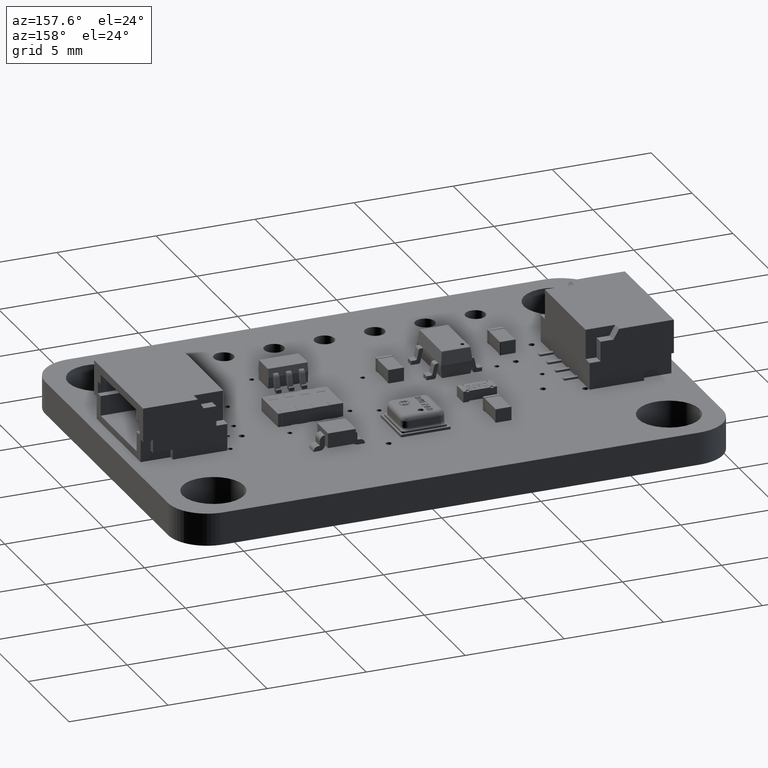
[diagram: clean part render]
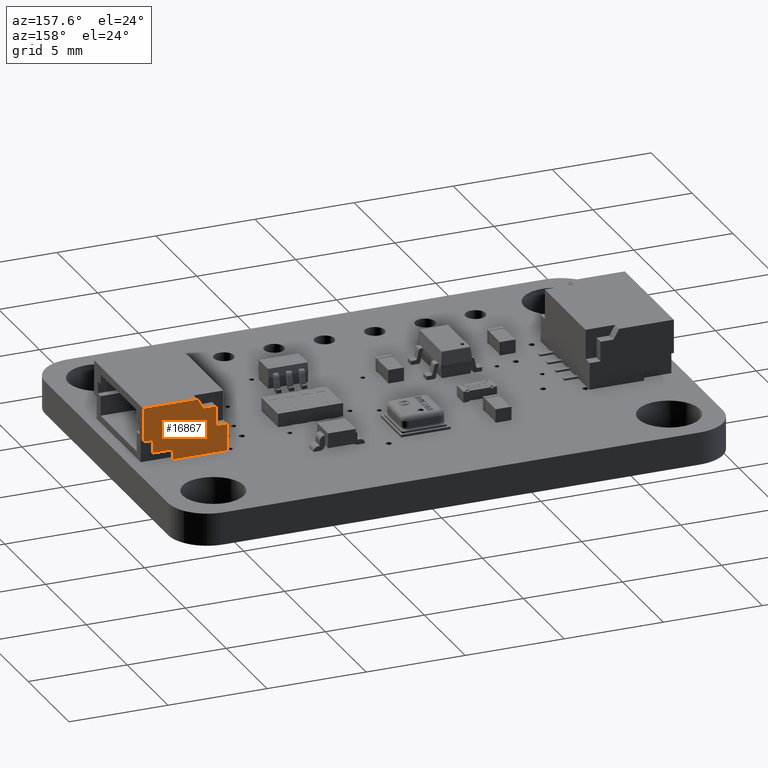
[diagram: same view with one face highlighted and labeled with its STEP entity id]
A machine part, auxiliary view. The second image highlights one B-rep face of the part: STEP entity #16867.
In plain terms, the highlighted planar face has unit normal (0, -1, -0).
Its self-contained STEP definition (entity closure, byte-faithful):
#16067 = VERTEX_POINT('',#16068);
#16068 = CARTESIAN_POINT('',(3.,1.555,3.895));
#16074 = EDGE_CURVE('',#16075,#16067,#16077,.T.);
#16075 = VERTEX_POINT('',#16076);
#16076 = CARTESIAN_POINT('',(3.,3.255,3.895));
#16077 = LINE('',#16078,#16079);
#16078 = CARTESIAN_POINT('',(3.,3.255,3.895));
#16079 = VECTOR('',#16080,1.);
#16080 = DIRECTION('',(-2.438091212181E-029,-1.,-3.491483361109E-015));
#16518 = VERTEX_POINT('',#16519);
#16519 = CARTESIAN_POINT('',(3.,0.355,-0.355));
#16525 = EDGE_CURVE('',#16526,#16518,#16528,.T.);
#16526 = VERTEX_POINT('',#16527);
#16527 = CARTESIAN_POINT('',(3.,0.355,2.395));
#16528 = LINE('',#16529,#16530);
#16529 = CARTESIAN_POINT('',(3.,0.355,-0.355));
#16530 = VECTOR('',#16531,1.);
#16531 = DIRECTION('',(-7.18705183704E-015,3.491483361109E-015,-1.));
#16808 = EDGE_CURVE('',#16075,#16809,#16811,.T.);
#16809 = VERTEX_POINT('',#16810);
#16810 = CARTESIAN_POINT('',(3.,3.255,1.133675134595));
#16811 = LINE('',#16812,#16813);
#16812 = CARTESIAN_POINT('',(3.,3.255,-0.355));
#16813 = VECTOR('',#16814,1.);
#16814 = DIRECTION('',(-7.18705183704E-015,3.491483361109E-015,-1.));
#16867 = ADVANCED_FACE('',(#16868),#16941,.F.);
#16868 = FACE_BOUND('',#16869,.T.);
#16869 = EDGE_LOOP('',(#16870,#16880,#16886,#16887,#16888,#16896,#16904,
    #16912,#16918,#16919,#16927,#16935));
#16870 = ORIENTED_EDGE('',*,*,#16871,.F.);
#16871 = EDGE_CURVE('',#16872,#16874,#16876,.T.);
#16872 = VERTEX_POINT('',#16873);
#16873 = CARTESIAN_POINT('',(3.,2.755,0.845));
#16874 = VERTEX_POINT('',#16875);
#16875 = CARTESIAN_POINT('',(3.,2.755,0.195));
#16876 = LINE('',#16877,#16878);
#16877 = CARTESIAN_POINT('',(3.,2.755,0.195));
#16878 = VECTOR('',#16879,1.);
#16879 = DIRECTION('',(-6.982966722219E-015,3.491483361109E-015,-1.));
#16880 = ORIENTED_EDGE('',*,*,#16881,.F.);
#16881 = EDGE_CURVE('',#16809,#16872,#16882,.T.);
#16882 = LINE('',#16883,#16884);
#16883 = CARTESIAN_POINT('',(3.,2.755,0.845));
#16884 = VECTOR('',#16885,1.);
#16885 = DIRECTION('',(-3.491483361109E-015,-0.866025403784,-0.5));
#16886 = ORIENTED_EDGE('',*,*,#16808,.F.);
#16887 = ORIENTED_EDGE('',*,*,#16074,.T.);
#16888 = ORIENTED_EDGE('',*,*,#16889,.F.);
#16889 = EDGE_CURVE('',#16890,#16067,#16892,.T.);
#16890 = VERTEX_POINT('',#16891);
#16891 = CARTESIAN_POINT('',(3.,1.555,3.395));
#16892 = LINE('',#16893,#16894);
#16893 = CARTESIAN_POINT('',(3.,1.555,3.895));
#16894 = VECTOR('',#16895,1.);
#16895 = DIRECTION('',(6.982966722219E-015,-3.057802492115E-015,1.));
#16896 = ORIENTED_EDGE('',*,*,#16897,.F.);
#16897 = EDGE_CURVE('',#16898,#16890,#16900,.T.);
#16898 = VERTEX_POINT('',#16899);
#16899 = CARTESIAN_POINT('',(3.,0.905,3.395));
#16900 = LINE('',#16901,#16902);
#16901 = CARTESIAN_POINT('',(3.,1.555,3.395));
#16902 = VECTOR('',#16903,1.);
#16903 = DIRECTION('',(2.438091212181E-029,1.,3.491483361109E-015));
#16904 = ORIENTED_EDGE('',*,*,#16905,.F.);
#16905 = EDGE_CURVE('',#16906,#16898,#16908,.T.);
#16906 = VERTEX_POINT('',#16907);
#16907 = CARTESIAN_POINT('',(3.,0.905,2.395));
#16908 = LINE('',#16909,#16910);
#16909 = CARTESIAN_POINT('',(3.,0.905,3.395));
#16910 = VECTOR('',#16911,1.);
#16911 = DIRECTION('',(6.982966722219E-015,-3.599903578358E-015,1.));
#16912 = ORIENTED_EDGE('',*,*,#16913,.F.);
#16913 = EDGE_CURVE('',#16526,#16906,#16914,.T.);
#16914 = LINE('',#16915,#16916);
#16915 = CARTESIAN_POINT('',(3.,0.905,2.395));
#16916 = VECTOR('',#16917,1.);
#16917 = DIRECTION('',(2.438091212181E-029,1.,3.491483361109E-015));
#16918 = ORIENTED_EDGE('',*,*,#16525,.T.);
#16919 = ORIENTED_EDGE('',*,*,#16920,.F.);
#16920 = EDGE_CURVE('',#16921,#16518,#16923,.T.);
#16921 = VERTEX_POINT('',#16922);
#16922 = CARTESIAN_POINT('',(3.,1.755,-0.355));
#16923 = LINE('',#16924,#16925);
#16924 = CARTESIAN_POINT('',(3.,3.255,-0.355));
#16925 = VECTOR('',#16926,1.);
#16926 = DIRECTION('',(-2.438091212181E-029,-1.,-3.491483361109E-015));
#16927 = ORIENTED_EDGE('',*,*,#16928,.F.);
#16928 = EDGE_CURVE('',#16929,#16921,#16931,.T.);
#16929 = VERTEX_POINT('',#16930);
#16930 = CARTESIAN_POINT('',(3.,1.755,0.195));
#16931 = LINE('',#16932,#16933);
#16932 = CARTESIAN_POINT('',(3.,1.755,0.195));
#16933 = VECTOR('',#16934,1.);
#16934 = DIRECTION('',(-6.982966722219E-015,3.491483361109E-015,-1.));
#16935 = ORIENTED_EDGE('',*,*,#16936,.F.);
#16936 = EDGE_CURVE('',#16874,#16929,#16937,.T.);
#16937 = LINE('',#16938,#16939);
#16938 = CARTESIAN_POINT('',(3.,2.755,0.195));
#16939 = VECTOR('',#16940,1.);
#16940 = DIRECTION('',(-2.513800689087E-029,-1.,-3.599903578358E-015));
#16941 = PLANE('',#16942);
#16942 = AXIS2_PLACEMENT_3D('',#16943,#16944,#16945);
#16943 = CARTESIAN_POINT('',(3.,3.255,-0.355));
#16944 = DIRECTION('',(-1.,-7.125597826469E-031,7.18705183704E-015));
#16945 = DIRECTION('',(7.18705183704E-015,-3.491483361109E-015,1.));